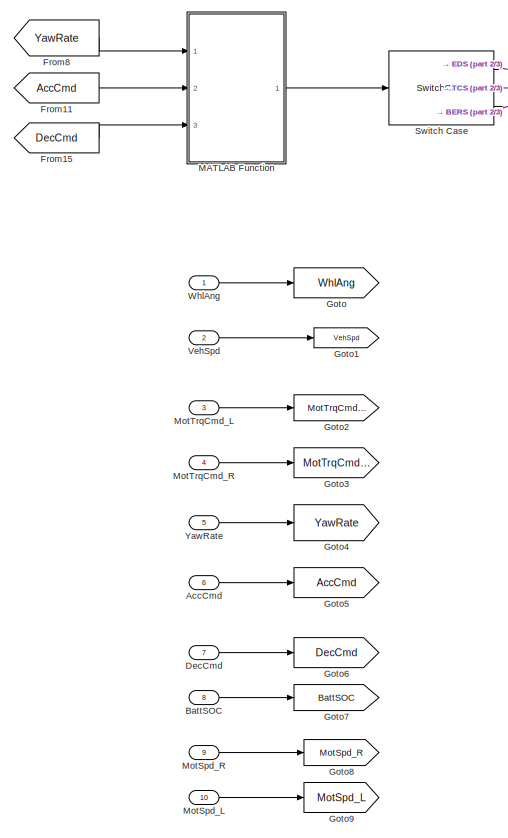
[diagram: root canvas - part 1/3, middle left region]
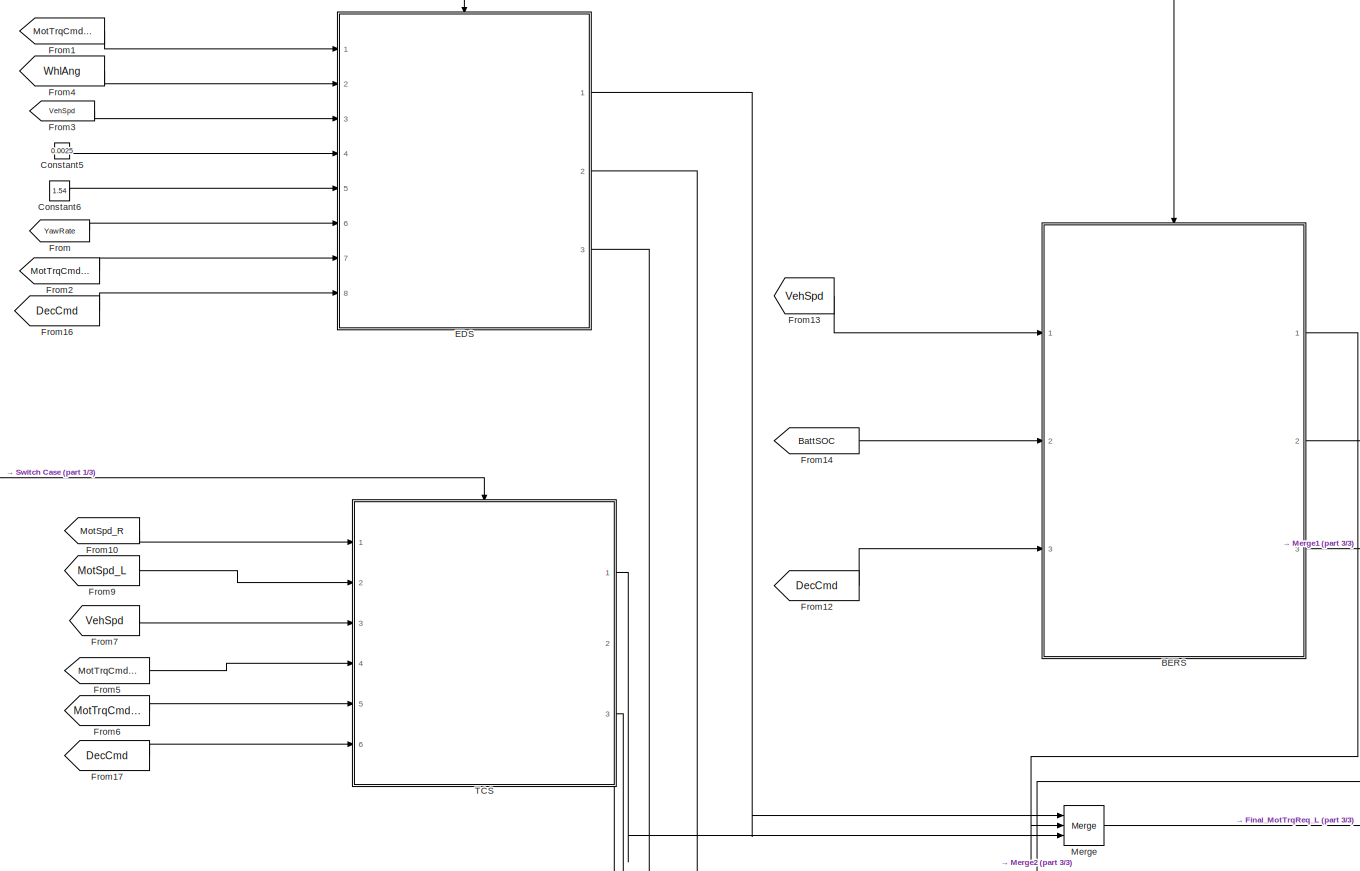
[diagram: root canvas - part 2/3, central region]
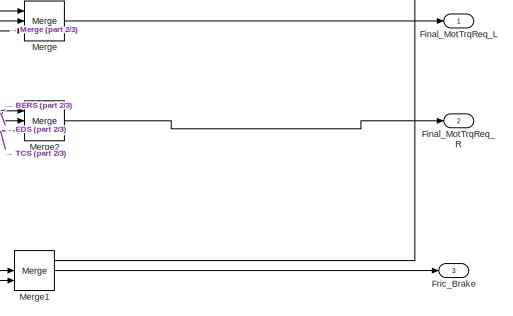
[diagram: root canvas - part 3/3, bottom right region]
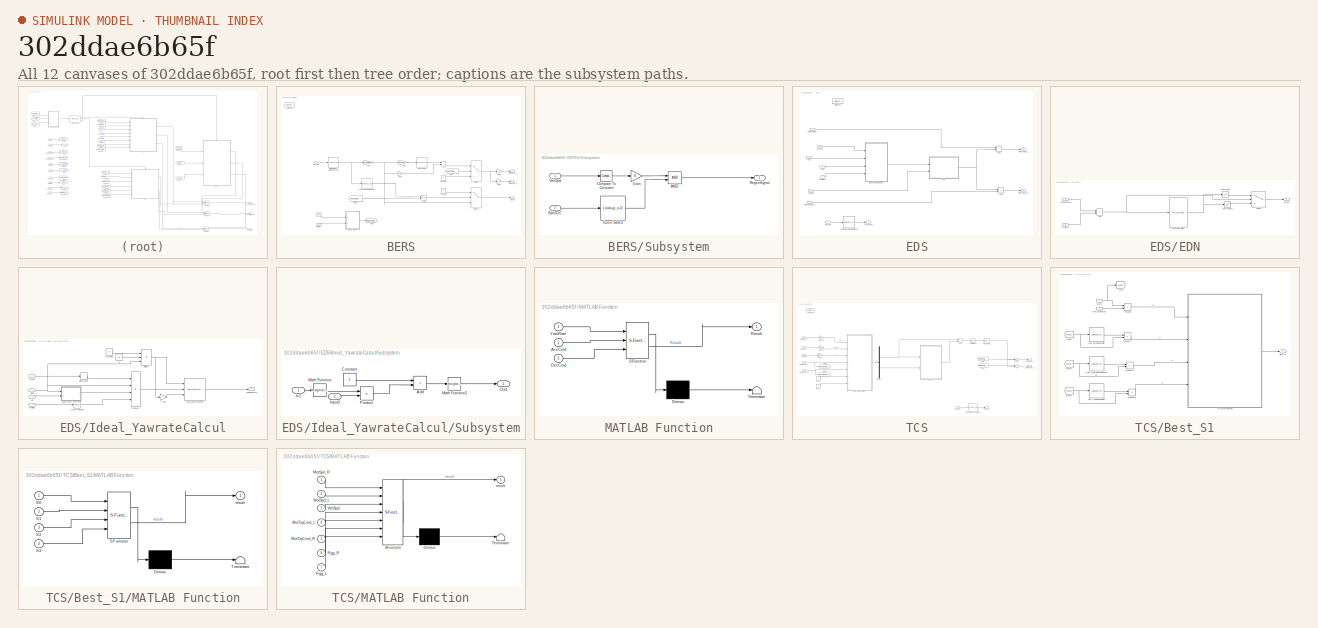
[diagram: thumbnail index - all 12 canvases of the model, root first then tree order]
MODEL slx_302ddae6b65f
KIND model
CONFIG AbsTol = auto
CONFIG EnableMultiTasking = off
CONFIG FixedStep = auto
CONFIG MaxStep = auto
CONFIG MinStep = auto
CONFIG RelTol = 1e-3
CONFIG SampleTimeConstraint = Unconstrained
CONFIG Solver = VariableStepAuto
CONFIG SolverName = VariableStepAuto
CONFIG StartTime = 0.0
CONFIG StopTime = 10.0
WORKSPACE source: mxarray member
WORKSPACE Batt: object (value not decoded)
BLOCK [Inport] AccCmd
  Port = 6
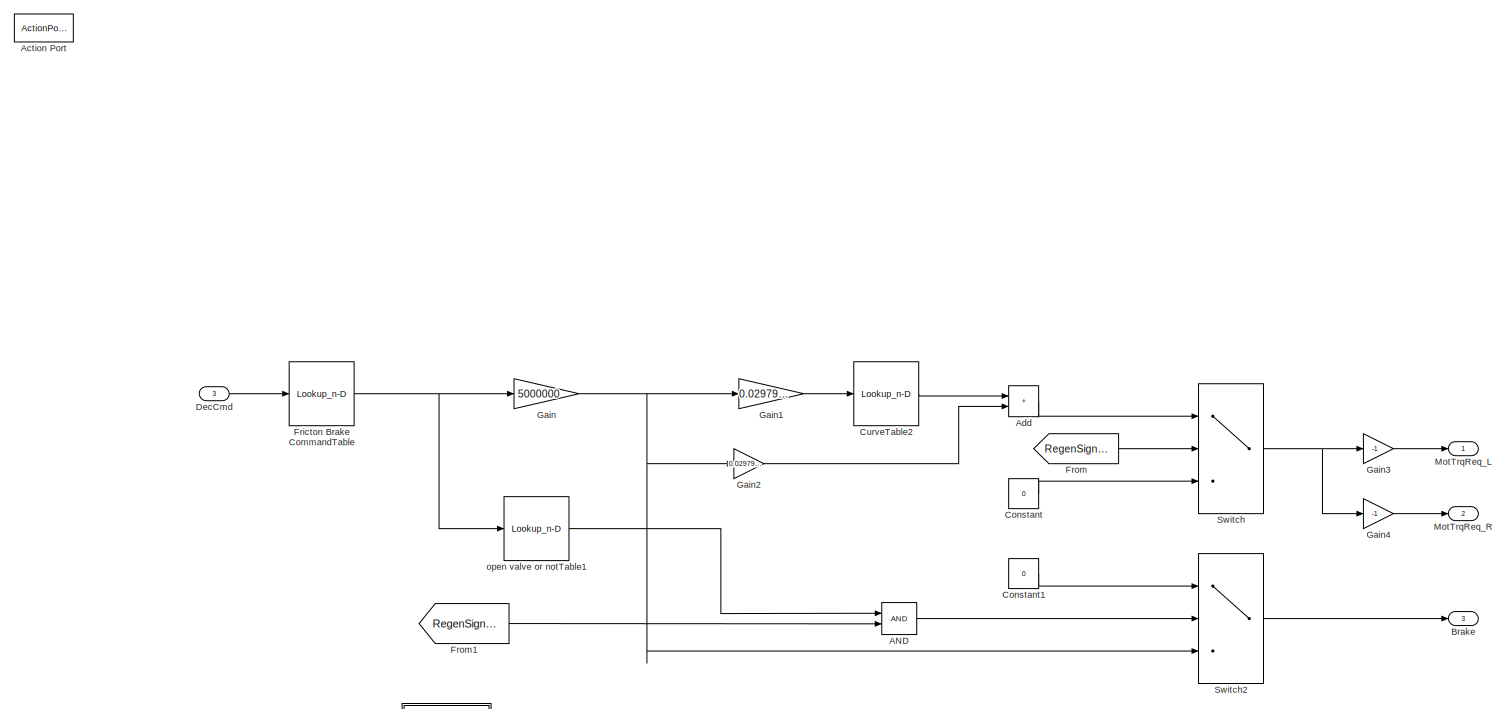
[diagram: BERS - part 1/2, most of the canvas]
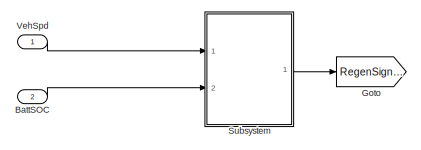
[diagram: BERS - part 2/2, bottom left region]
BLOCK [SubSystem] BERS
  Ports = [3, 3, 0, 0, 0, 0, 0, 1]
  RequestExecContextInheritance = off
  TreatAsAtomicUnit = on
BLOCK [Logic] BERS/AND
  AllPortsSameDT = off
  IconShape = distinctive
  OutDataTypeStr = boolean
  Ports = [2, 1]
BLOCK [ActionPort] BERS/Action Port
  ActionPortLabel = case [ 3 ]:
BLOCK [Sum] BERS/Add
  IconShape = rectangular
  Ports = [2, 1]
BLOCK [Inport] BERS/BattSOC
  Port = 2
BLOCK [Outport] BERS/Brake
  Port = 3
BLOCK [Constant] BERS/Constant
  Value = 0
BLOCK [Constant] BERS/Constant1
  Value = 0
BLOCK [Lookup_n-D] BERS/CurveTable2
  BreakpointsForDimension1 = Batt.Limit.SOC
  InternalRulePriority = Speed
  NumberOfTableDimensions = 1
  Ports = [1, 1]
  RndMeth = Simplest
  Table = Batt.Limit.Charge
BLOCK [Inport] BERS/DecCmd
  Port = 3
BLOCK [Lookup_n-D] BERS/Fricton Brake CommandTable
  BreakpointsForDimension1 = [.0 0.1 0.2 0.4 0.6 0.8 1.0]
  InternalRulePriority = Speed
  NumberOfTableDimensions = 1
  Ports = [1, 1]
  RndMeth = Simplest
  Table = [0 0 0.2 0.4 0.6 0.8 1.0]*60
BLOCK [From] BERS/From
  GotoTag = RegenSignal
BLOCK [From] BERS/From1
  GotoTag = RegenSignal
BLOCK [Gain] BERS/Gain
  Gain = 5000000
BLOCK [Gain] BERS/Gain1
  Gain = 0.0297999215999
BLOCK [Gain] BERS/Gain2
  Gain = 0.0297999215999
BLOCK [Gain] BERS/Gain3
  Gain = -1
BLOCK [Gain] BERS/Gain4
  Gain = -1
BLOCK [Goto] BERS/Goto
  GotoTag = RegenSignal
BLOCK [Outport] BERS/MotTrqReq_L
BLOCK [Outport] BERS/MotTrqReq_R
  Port = 2
BLOCK [SubSystem] BERS/Subsystem
  Ports = [2, 1]
  RequestExecContextInheritance = off
BLOCK [Logic] BERS/Subsystem/AND1
  AllPortsSameDT = off
  IconShape = distinctive
  OutDataTypeStr = boolean
  Ports = [2, 1]
BLOCK [Inport] BERS/Subsystem/BattSOC
  Port = 2
BLOCK [Reference] BERS/Subsystem/Compare To Constant  REF=simulink/Logic and Bit
Operations/Compare
To Constant
  Ports = [1, 1]
  SourceBlock = simulink/Logic and Bit\nOperations/Compare\nTo Constant
  SourceProductBaseCode = SL
  SourceType = Compare To Constant
BLOCK [Lookup_n-D] BERS/Subsystem/CurveTable3
  BreakpointsForDimension1 = Batt.Limit.SOC
  BreakpointsForDimension1DataTypeStr = Inherit: Inherit from 'Breakpoint data'
  ExtrapMethod = Clip
  InternalRulePriority = Speed
  NumberOfTableDimensions = 1
  Ports = [1, 1]
  RndMeth = Simplest
  Table = Batt.Limit.Charge
  UseLastTableValue = on
BLOCK [Gain] BERS/Subsystem/Gain
BLOCK [Outport] BERS/Subsystem/RegenSignal
BLOCK [Inport] BERS/Subsystem/VehSpd
BLOCK [Switch] BERS/Switch
  Criteria = u2 > Threshold
  InputSameDT = off
  SaturateOnIntegerOverflow = off
BLOCK [Switch] BERS/Switch2
  Criteria = u2 > Threshold
  InputSameDT = off
  SaturateOnIntegerOverflow = off
BLOCK [Inport] BERS/VehSpd
BLOCK [Lookup_n-D] BERS/open valve or notTable1
  BreakpointsForDimension1 = [.0 0.1 0.2 0.4 0.6 0.8 1.0]
  InternalRulePriority = Speed
  NumberOfTableDimensions = 1
  Ports = [1, 1]
  RndMeth = Simplest
  Table = [0 0 0.2 0.4 0.6 0.8 1.0]*60
BLOCK [Inport] BattSOC
  Port = 8
BLOCK [Constant] Constant5
  Value = 0.0025
BLOCK [Constant] Constant6
  Value = 1.54
BLOCK [Inport] DecCmd
  Port = 7
BLOCK [SubSystem] EDS
  Ports = [8, 3, 0, 0, 0, 0, 0, 1]
  RequestExecContextInheritance = off
  TreatAsAtomicUnit = on
BLOCK [ActionPort] EDS/Action Port
  ActionPortLabel = case [ 1 ]:
BLOCK [Sum] EDS/Add1
  IconShape = rectangular
  Ports = [2, 1]
BLOCK [Sum] EDS/Add2
  IconShape = rectangular
  Inputs = -+
  Ports = [2, 1]
BLOCK [Inport] EDS/DecCmd
  Port = 8
BLOCK [SubSystem] EDS/EDN
  Ports = [2, 1]
  RequestExecContextInheritance = off
BLOCK [Sum] EDS/EDN/Add
  IconShape = rectangular
  Inputs = +-
  Ports = [2, 1]
BLOCK [Inport] EDS/EDN/IdealYawrate
BLOCK [Reference] EDS/EDN/PID Controller  REF=simulink/Continuous/PID Controller
  Ports = [1, 1]
  SourceBlock = simulink/Continuous/PID Controller
  SourceProductBaseCode = SL
  SourceType = PID 1dof
BLOCK [Outport] EDS/EDN/PIDOut
BLOCK [Saturate] EDS/EDN/Saturation
  LowerLimit = 0
  UpperLimit = inf
BLOCK [Saturate] EDS/EDN/Saturation1
  LowerLimit = -inf
  UpperLimit = 0
BLOCK [Switch] EDS/EDN/Switch
  Criteria = u2 > Threshold
  InputSameDT = off
  SaturateOnIntegerOverflow = off
BLOCK [Inport] EDS/EDN/YawRate
  Port = 2
BLOCK [Outport] EDS/FricBrake
  Port = 3
BLOCK [Lookup_n-D] EDS/Fricton Brake Command
  BreakpointsForDimension1 = [.0 0.1 0.2 0.4 0.6 0.8 1.0]
  ExtrapMethod = Clip
  InternalRulePriority = Speed
  NumberOfTableDimensions = 1
  Ports = [1, 1]
  RndMeth = Simplest
  Table = [0 0 0.2 0.4 0.6 0.8 1.0]*60
BLOCK [SubSystem] EDS/Ideal_YawrateCalcul
  Ports = [4, 1]
  RequestExecContextInheritance = off
BLOCK [DeadZone] EDS/Ideal_YawrateCalcul/Dead Zone
  LowerValue = -0.025
  UpperValue = 0.025
BLOCK [Product] EDS/Ideal_YawrateCalcul/Divide
  Inputs = **/
  Ports = [3, 1]
BLOCK [Gain] EDS/Ideal_YawrateCalcul/Gain
  Gain = -1
BLOCK [Outport] EDS/Ideal_YawrateCalcul/IdealYawrate
BLOCK [Inport] EDS/Ideal_YawrateCalcul/Kd
  Port = 3
BLOCK [Math] EDS/Ideal_YawrateCalcul/Math Function
  Operator = reciprocal
  Ports = [1, 1]
BLOCK [Constant] EDS/Ideal_YawrateCalcul/Mu_Peak
  Value = 1.4
BLOCK [Product] EDS/Ideal_YawrateCalcul/Product1
  Inputs = 4
  Ports = [4, 1]
BLOCK [Reference] EDS/Ideal_YawrateCalcul/Saturation Dynamic  REF=simulink/Discontinuities/Saturation
Dynamic
  Ports = [3, 1]
  SourceBlock = simulink/Discontinuities/Saturation\nDynamic
  SourceProductBaseCode = SL
  SourceType = Saturation Dynamic
BLOCK [Inport] EDS/Ideal_YawrateCalcul/Spd
  Port = 2
BLOCK [SubSystem] EDS/Ideal_YawrateCalcul/Subsystem
  Ports = [2, 1]
  RequestExecContextInheritance = off
BLOCK [Sum] EDS/Ideal_YawrateCalcul/Subsystem/Add
  IconShape = rectangular
  Ports = [2, 1]
BLOCK [Constant] EDS/Ideal_YawrateCalcul/Subsystem/Constant
BLOCK [Inport] EDS/Ideal_YawrateCalcul/Subsystem/In1
BLOCK [Inport] EDS/Ideal_YawrateCalcul/Subsystem/Input3
  Port = 2
BLOCK [Math] EDS/Ideal_YawrateCalcul/Subsystem/Math Function
  Operator = magnitude^2
  Ports = [1, 1]
BLOCK [Math] EDS/Ideal_YawrateCalcul/Subsystem/Math Function2
  Operator = reciprocal
  Ports = [1, 1]
BLOCK [Outport] EDS/Ideal_YawrateCalcul/Subsystem/Out1
BLOCK [Product] EDS/Ideal_YawrateCalcul/Subsystem/Product
  Ports = [2, 1]
BLOCK [Inport] EDS/Ideal_YawrateCalcul/WhlAng
BLOCK [Inport] EDS/Ideal_YawrateCalcul/WhlBas
  Port = 4
BLOCK [Constant] EDS/Ideal_YawrateCalcul/g
  Value = 9.8
BLOCK [Inport] EDS/Kd
  Port = 4
BLOCK [Inport] EDS/MotTrqCmd_L
BLOCK [Inport] EDS/MotTrqCmd_R
  Port = 7
BLOCK [Outport] EDS/MotTrqReq_L
BLOCK [Outport] EDS/MotTrqReq_R
  Port = 2
BLOCK [Inport] EDS/Spd
  Port = 3
BLOCK [Inport] EDS/WhlAng
  Port = 2
BLOCK [Inport] EDS/WhlBas
  Port = 5
BLOCK [Inport] EDS/YawRate
  Port = 6
BLOCK [Outport] Final_MotTrqReq_L
BLOCK [Outport] Final_MotTrqReq_R
  Port = 2
BLOCK [Outport] Fric_Brake
  Port = 3
BLOCK [From] From
  GotoTag = YawRate
BLOCK [From] From1
  GotoTag = MotTrqCmd_L
BLOCK [From] From10
  GotoTag = MotSpd_R
BLOCK [From] From11
  GotoTag = AccCmd
BLOCK [From] From12
  GotoTag = DecCmd
BLOCK [From] From13
  GotoTag = VehSpd
BLOCK [From] From14
  GotoTag = BattSOC
BLOCK [From] From15
  GotoTag = DecCmd
BLOCK [From] From16
  GotoTag = DecCmd
BLOCK [From] From17
  GotoTag = DecCmd
BLOCK [From] From2
  GotoTag = MotTrqCmd_R
BLOCK [From] From3
  GotoTag = VehSpd
BLOCK [From] From4
  GotoTag = WhlAng
BLOCK [From] From5
  GotoTag = MotTrqCmd_L
BLOCK [From] From6
  GotoTag = MotTrqCmd_R
BLOCK [From] From7
  GotoTag = VehSpd
BLOCK [From] From8
  GotoTag = YawRate
BLOCK [From] From9
  GotoTag = MotSpd_L
BLOCK [Goto] Goto
  GotoTag = WhlAng
BLOCK [Goto] Goto1
  GotoTag = VehSpd
BLOCK [Goto] Goto2
  GotoTag = MotTrqCmd_L
BLOCK [Goto] Goto3
  GotoTag = MotTrqCmd_R
BLOCK [Goto] Goto4
  GotoTag = YawRate
BLOCK [Goto] Goto5
  GotoTag = AccCmd
BLOCK [Goto] Goto6
  GotoTag = DecCmd
BLOCK [Goto] Goto7
  GotoTag = BattSOC
BLOCK [Goto] Goto8
  GotoTag = MotSpd_R
BLOCK [Goto] Goto9
  GotoTag = MotSpd_L
BLOCK [SubSystem] MATLAB Function
  ErrorFcn = Stateflow.Translate.translate
  PermitHierarchicalResolution = ExplicitOnly
  Ports = [3, 1]
  RequestExecContextInheritance = off
  SFBlockType = MATLAB Function
  TreatAsAtomicUnit = on
BLOCK [Demux] MATLAB Function/ Demux 
  Outputs = 1
  Ports = [1, 1]
BLOCK [S-Function] MATLAB Function/ SFunction 
  EnableBusSupport = on
  FunctionName = sf_sfun
  PortCounts = [3 2]
  Ports = [3, 2]
  SFcnIsStateOwnerBlock = off
  SFunctionDeploymentMode = off
  Tag = Stateflow S-Function 1
BLOCK [Terminator] MATLAB Function/ Terminator 
BLOCK [Inport] MATLAB Function/AccCmd
  Port = 2
BLOCK [Inport] MATLAB Function/DecCmd
  Port = 3
BLOCK [Outport] MATLAB Function/Result
BLOCK [Inport] MATLAB Function/YawRate
BLOCK [Merge] Merge
  Inputs = 3
  Ports = [3, 1]
BLOCK [Merge] Merge1
  Inputs = 3
  Ports = [3, 1]
BLOCK [Merge] Merge2
  Inputs = 3
  Ports = [3, 1]
BLOCK [Inport] MotSpd_L
  Port = 10
BLOCK [Inport] MotSpd_R
  Port = 9
BLOCK [Inport] MotTrqCmd_L
  Port = 3
BLOCK [Inport] MotTrqCmd_R
  Port = 4
BLOCK [SwitchCase] Switch Case
  CaseConditions = {1,2,3}
  Ports = [1, 3]
  ShowDefaultCase = off
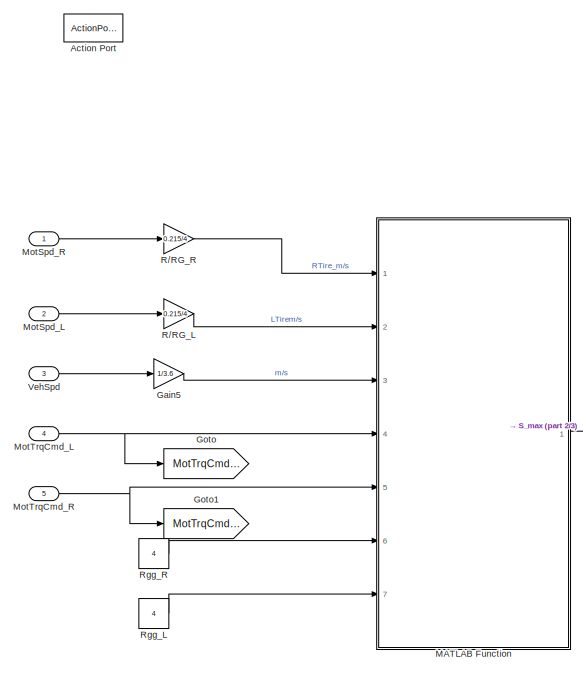
[diagram: TCS - part 1/3, left side, full height]
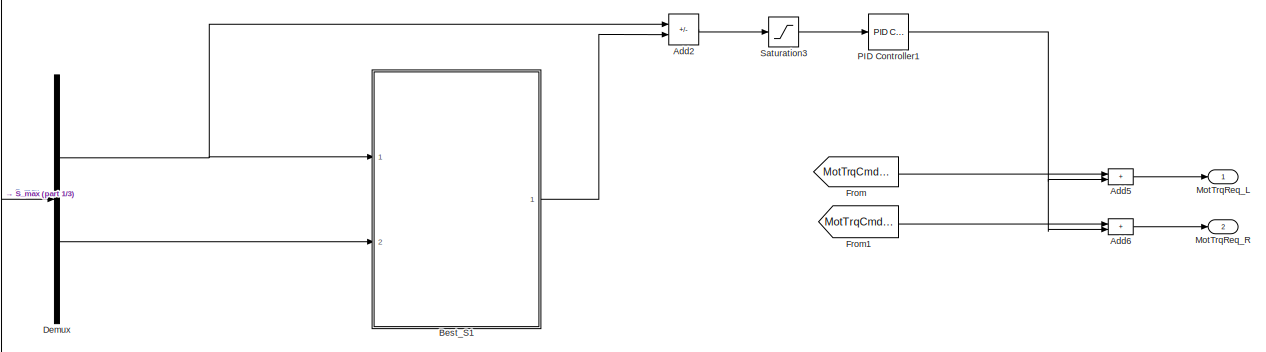
[diagram: TCS - part 2/3, central region]
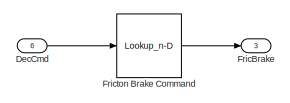
[diagram: TCS - part 3/3, bottom right region]
BLOCK [SubSystem] TCS
  Ports = [6, 3, 0, 0, 0, 0, 0, 1]
  RequestExecContextInheritance = off
  TreatAsAtomicUnit = on
BLOCK [ActionPort] TCS/Action Port
  ActionPortLabel = case [ 2 ]:
BLOCK [Sum] TCS/Add2
  IconShape = rectangular
  Inputs = -+
  Ports = [2, 1]
BLOCK [Sum] TCS/Add5
  IconShape = rectangular
  Ports = [2, 1]
BLOCK [Sum] TCS/Add6
  IconShape = rectangular
  Ports = [2, 1]
BLOCK [SubSystem] TCS/Best_S1
  Ports = [2, 1]
  RequestExecContextInheritance = off
BLOCK [Outport] TCS/Best_S1/Best_S
BLOCK [From] TCS/Best_S1/From
  GotoTag = MaxS
BLOCK [From] TCS/Best_S1/From1
  GotoTag = MaxS
BLOCK [From] TCS/Best_S1/From2
  GotoTag = MaxS
BLOCK [Goto] TCS/Best_S1/Goto
  GotoTag = MaxS
BLOCK [Lookup_n-D] TCS/Best_S1/LNG_DryFlcoeTable
  BreakpointsForDimension1 = [0	0.02	0.04	0.06	0.08	0.1	0.12	0.14	0.16	0.18	0.2	0.22	0.24	0.26	0.28	0.3	0.32	0.34	0.36	0.38	0.4	0.42	0.44	0.46	0.48	0.5	0.52	0.54	0.56	0.58	0.6	0.62	0.64	0.66	0.68	0.7	0.72	0.74	0.76	0.78	0.8	0.82	0.84	0.86	0.88	0.9	0.92	0.94	0.96	0.98	1]
  InternalRulePriority = Speed
  NumberOfTableDimensions = 1
  Ports = [1, 1]
  RndMeth = Simplest
  Table = [0	0.463	0.738	0.9	0.994	1.05	1.07	1.09	1.09	1.09	1.08	1.07	1.06	1.05	1.04	1.03	1.02	1.01	1	0.992	0.981	0.97	0.959	0.949	0.938	0.927	0.916	0.905	0.895	0.884	0.873	0.862	0.851	0.841	0.83	0.819	0.808	0.797	0.787	0.776	0.765	0.754	0.743	0.733	0.722	0.711	0.7	0.689	0.679	0.668	0.657]
BLOCK [Lookup_n-D] TCS/Best_S1/LNG_IceFlcoeTable2
  BreakpointsForDimension1 = [ 0, 0.02, 0.04, 0.06, 0.08, 0.1, 0.12, 0.14, 0.16, 0.18, 0.2, 0.22, 0.24, 0.26, 0.28, 0.3, 0.32, 0.34, 0.36, 0.38, 0.4, 0.42, 0.44, 0.46, 0.48, 0.5, 0.52, 0.54, 0.56, 0.58, 0.6, 0.62, 0.64, 0.66, 0.68, 0.7, 0.72, 0.74, 0.76, 0.78, 0.8, 0.82, 0.84, 0.86, 0.88, 0.9, 0.92, 0.94, 0.96, 0.98, 1.0]
  InternalRulePriority = Speed
  NumberOfTableDimensions = 1
  Ports = [1, 1]
  RndMeth = Simplest
  Table = [ 0, 0.05, 0.05, 0.05, 0.05, 0.05, 0.05, 0.05, 0.05, 0.05, 0.05, 0.05, 0.05, 0.05, 0.05, 0.05, 0.05, 0.05, 0.05, 0.05, 0.05, 0.05, 0.05, 0.05, 0.05, 0.05, 0.05, 0.05, 0.049, 0.049, 0.049, 0.049, 0.049, 0.049, 0.049, 0.049, 0.049, 0.049, 0.049, 0.049, 0.049, 0.049, 0.049, 0.049, 0.049, 0.049, 0.049, 0.049, 0.049, 0.049, 0.049]
BLOCK [Lookup_n-D] TCS/Best_S1/LNG_WetFlcoeTableTable1
  BreakpointsForDimension1 = [ 0, 0.02, 0.04, 0.06, 0.08, 0.1, 0.12, 0.14, 0.16, 0.18, 0.2, 0.22, 0.24, 0.26, 0.28, 0.3, 0.32, 0.34, 0.36, 0.38, 0.4, 0.42, 0.44, 0.46, 0.48, 0.5, 0.52, 0.54, 0.56, 0.58, 0.6, 0.62, 0.64, 0.66, 0.68, 0.7, 0.72, 0.74, 0.76, 0.78, 0.8, 0.82, 0.84, 0.86, 0.88, 0.9, 0.92, 0.94, 0.96, 0.98, 1.0]
  InternalRulePriority = Speed
  NumberOfTableDimensions = 1
  Ports = [1, 1]
  RndMeth = Simplest
  Table = [ 0, 0.41, 0.62, 0.72, 0.77, 0.79, 0.8, 0.8, 0.8, 0.79, 0.79, 0.78, 0.77, 0.77, 0.76, 0.75, 0.74, 0.74, 0.73, 0.72, 0.72, 0.71, 0.7, 0.7, 0.69, 0.68, 0.68, 0.67, 0.66, 0.65, 0.65, 0.64, 0.63, 0.63, 0.62, 0.61, 0.6, 0.6, 0.59, 0.58, 0.58, 0.57, 0.56, 0.56, 0.55, 0.54, 0.54, 0.53, 0.52, 0.51, 0.51]
BLOCK [SubSystem] TCS/Best_S1/MATLAB Function
  ErrorFcn = Stateflow.Translate.translate
  PermitHierarchicalResolution = ExplicitOnly
  Ports = [4, 1]
  RequestExecContextInheritance = off
  SFBlockType = MATLAB Function
  TreatAsAtomicUnit = on
BLOCK [Demux] TCS/Best_S1/MATLAB Function/ Demux 
  Outputs = 1
  Ports = [1, 1]
BLOCK [S-Function] TCS/Best_S1/MATLAB Function/ SFunction 
  EnableBusSupport = on
  FunctionName = sf_sfun
  PortCounts = [4 2]
  Ports = [4, 2]
  SFcnIsStateOwnerBlock = off
  SFunctionDeploymentMode = off
  Tag = Stateflow S-Function 3
BLOCK [Terminator] TCS/Best_S1/MATLAB Function/ Terminator 
BLOCK [Inport] TCS/Best_S1/MATLAB Function/S0
BLOCK [Inport] TCS/Best_S1/MATLAB Function/S1
  Port = 2
BLOCK [Inport] TCS/Best_S1/MATLAB Function/S2
  Port = 3
BLOCK [Inport] TCS/Best_S1/MATLAB Function/S3
  Port = 4
BLOCK [Outport] TCS/Best_S1/MATLAB Function/result
BLOCK [Inport] TCS/Best_S1/MaxS
BLOCK [Inport] TCS/Best_S1/Max_Whl_Flcoe
  Port = 2
BLOCK [Product] TCS/Best_S1/Product
  Ports = [2, 1]
BLOCK [Product] TCS/Best_S1/Product1
  Ports = [2, 1]
BLOCK [Product] TCS/Best_S1/Product2
  Ports = [2, 1]
BLOCK [Product] TCS/Best_S1/Product3
  Ports = [2, 1]
BLOCK [Inport] TCS/DecCmd
  Port = 6
BLOCK [Demux] TCS/Demux
  Outputs = 2
  Ports = [1, 2]
BLOCK [Outport] TCS/FricBrake
  Port = 3
BLOCK [Lookup_n-D] TCS/Fricton Brake Command
  BreakpointsForDimension1 = [.0 0.1 0.2 0.4 0.6 0.8 1.0]
  ExtrapMethod = Clip
  InternalRulePriority = Speed
  NumberOfTableDimensions = 1
  Ports = [1, 1]
  RndMeth = Simplest
  Table = [0 0 0.2 0.4 0.6 0.8 1.0]*60
BLOCK [From] TCS/From
  GotoTag = MotTrqCmd_L
BLOCK [From] TCS/From1
  GotoTag = MotTrqCmd_R
BLOCK [Gain] TCS/Gain5
  Gain = 1/3.6
BLOCK [Goto] TCS/Goto
  GotoTag = MotTrqCmd_L
BLOCK [Goto] TCS/Goto1
  GotoTag = MotTrqCmd_R
BLOCK [SubSystem] TCS/MATLAB Function
  ErrorFcn = Stateflow.Translate.translate
  PermitHierarchicalResolution = ExplicitOnly
  Ports = [7, 1]
  RequestExecContextInheritance = off
  SFBlockType = MATLAB Function
  TreatAsAtomicUnit = on
BLOCK [Demux] TCS/MATLAB Function/ Demux 
  Outputs = 1
  Ports = [1, 1]
BLOCK [S-Function] TCS/MATLAB Function/ SFunction 
  EnableBusSupport = on
  FunctionName = sf_sfun
  PortCounts = [7 2]
  Ports = [7, 2]
  SFcnIsStateOwnerBlock = off
  SFunctionDeploymentMode = off
  Tag = Stateflow S-Function 2
BLOCK [Terminator] TCS/MATLAB Function/ Terminator 
BLOCK [Inport] TCS/MATLAB Function/MotSpd_L
  Port = 2
BLOCK [Inport] TCS/MATLAB Function/MotSpd_R
BLOCK [Inport] TCS/MATLAB Function/MotTrqCmd_L
  Port = 4
BLOCK [Inport] TCS/MATLAB Function/MotTrqCmd_R
  Port = 5
BLOCK [Inport] TCS/MATLAB Function/Rgg_L
  Port = 7
BLOCK [Inport] TCS/MATLAB Function/Rgg_R
  Port = 6
BLOCK [Inport] TCS/MATLAB Function/VehSpd
  Port = 3
BLOCK [Outport] TCS/MATLAB Function/result
BLOCK [Inport] TCS/MotSpd_L
  Port = 2
BLOCK [Inport] TCS/MotSpd_R
BLOCK [Inport] TCS/MotTrqCmd_L
  Port = 4
BLOCK [Inport] TCS/MotTrqCmd_R
  Port = 5
BLOCK [Outport] TCS/MotTrqReq_L
BLOCK [Outport] TCS/MotTrqReq_R
  Port = 2
BLOCK [Reference] TCS/PID Controller1  REF=simulink/Continuous/PID Controller
  Ports = [1, 1]
  SourceBlock = simulink/Continuous/PID Controller
  SourceProductBaseCode = SL
  SourceType = PID 1dof
BLOCK [Gain] TCS/R//RG_L
  Gain = 0.215/4
BLOCK [Gain] TCS/R//RG_R
  Gain = 0.215/4
BLOCK [Constant] TCS/Rgg_L
  Value = 4
BLOCK [Constant] TCS/Rgg_R
  Value = 4
BLOCK [Saturate] TCS/Saturation3
  LowerLimit = -2
  UpperLimit = 2
BLOCK [Inport] TCS/VehSpd
  Port = 3
BLOCK [Inport] VehSpd
  Port = 2
BLOCK [Inport] WhlAng
BLOCK [Inport] YawRate
  Port = 5
LINE AccCmd:1 -> Goto5:1
LINE BERS/AND:1 -> BERS/Switch2:2
LINE BERS/Add:1 -> BERS/Switch:1
LINE BERS/BattSOC:1 -> BERS/Subsystem:2
LINE BERS/Constant1:1 -> BERS/Switch2:1
LINE BERS/Constant:1 -> BERS/Switch:3
LINE BERS/CurveTable2:1 -> BERS/Add:1
LINE BERS/DecCmd:1 -> BERS/Fricton Brake CommandTable:1
NET BERS/Fricton Brake CommandTable:1 -> BERS/Gain:1, BERS/open valve or notTable1:1
LINE BERS/From1:1 -> BERS/AND:2
LINE BERS/From:1 -> BERS/Switch:2
LINE BERS/Gain1:1 -> BERS/CurveTable2:1
LINE BERS/Gain2:1 -> BERS/Add:2
LINE BERS/Gain3:1 -> BERS/MotTrqReq_L:1
LINE BERS/Gain4:1 -> BERS/MotTrqReq_R:1
NET BERS/Gain:1 -> BERS/Gain1:1, BERS/Gain2:1, BERS/Switch2:3
LINE BERS/Subsystem/AND1:1 -> BERS/Subsystem/RegenSignal:1
LINE BERS/Subsystem/BattSOC:1 -> BERS/Subsystem/CurveTable3:1
LINE BERS/Subsystem/Compare To Constant:1 -> BERS/Subsystem/Gain:1
LINE BERS/Subsystem/CurveTable3:1 -> BERS/Subsystem/AND1:2
LINE BERS/Subsystem/Gain:1 -> BERS/Subsystem/AND1:1
LINE BERS/Subsystem/VehSpd:1 -> BERS/Subsystem/Compare To Constant:1
LINE BERS/Subsystem:1 -> BERS/Goto:1
LINE BERS/Switch2:1 -> BERS/Brake:1
NET BERS/Switch:1 -> BERS/Gain3:1, BERS/Gain4:1
LINE BERS/VehSpd:1 -> BERS/Subsystem:1
LINE BERS/open valve or notTable1:1 -> BERS/AND:1
LINE BERS:1 -> Merge:2
LINE BERS:2 -> Merge2:1
LINE BERS:3 -> Merge1:1
LINE BattSOC:1 -> Goto7:1
LINE Constant5:1 -> EDS:4
LINE Constant6:1 -> EDS:5
LINE DecCmd:1 -> Goto6:1
LINE EDS/Add1:1 -> EDS/MotTrqReq_L:1
LINE EDS/Add2:1 -> EDS/MotTrqReq_R:1
LINE EDS/DecCmd:1 -> EDS/Fricton Brake Command:1
NET EDS/EDN/Add:1 -> EDS/EDN/PID Controller:1, EDS/EDN/Switch:2
LINE EDS/EDN/IdealYawrate:1 -> EDS/EDN/Add:1
NET EDS/EDN/PID Controller:1 -> EDS/EDN/Saturation1:1, EDS/EDN/Saturation:1
LINE EDS/EDN/Saturation1:1 -> EDS/EDN/Switch:3
LINE EDS/EDN/Saturation:1 -> EDS/EDN/Switch:1
LINE EDS/EDN/Switch:1 -> EDS/EDN/PIDOut:1
LINE EDS/EDN/YawRate:1 -> EDS/EDN/Add:2
NET EDS/EDN:1 -> EDS/Add1:2, EDS/Add2:1
LINE EDS/Fricton Brake Command:1 -> EDS/FricBrake:1
LINE EDS/Ideal_YawrateCalcul/Dead Zone:1 -> EDS/Ideal_YawrateCalcul/Product1:1
NET EDS/Ideal_YawrateCalcul/Divide:1 -> EDS/Ideal_YawrateCalcul/Gain:1, EDS/Ideal_YawrateCalcul/Saturation Dynamic:1
LINE EDS/Ideal_YawrateCalcul/Gain:1 -> EDS/Ideal_YawrateCalcul/Saturation Dynamic:3
LINE EDS/Ideal_YawrateCalcul/Kd:1 -> EDS/Ideal_YawrateCalcul/Subsystem:2
LINE EDS/Ideal_YawrateCalcul/Math Function:1 -> EDS/Ideal_YawrateCalcul/Product1:4
LINE EDS/Ideal_YawrateCalcul/Mu_Peak:1 -> EDS/Ideal_YawrateCalcul/Divide:1
LINE EDS/Ideal_YawrateCalcul/Product1:1 -> EDS/Ideal_YawrateCalcul/Saturation Dynamic:2
LINE EDS/Ideal_YawrateCalcul/Saturation Dynamic:1 -> EDS/Ideal_YawrateCalcul/IdealYawrate:1
NET EDS/Ideal_YawrateCalcul/Spd:1 -> EDS/Ideal_YawrateCalcul/Divide:3, EDS/Ideal_YawrateCalcul/Product1:2, EDS/Ideal_YawrateCalcul/Subsystem:1
LINE EDS/Ideal_YawrateCalcul/Subsystem/Add:1 -> EDS/Ideal_YawrateCalcul/Subsystem/Math Function2:1
LINE EDS/Ideal_YawrateCalcul/Subsystem/Constant:1 -> EDS/Ideal_YawrateCalcul/Subsystem/Add:1
LINE EDS/Ideal_YawrateCalcul/Subsystem/In1:1 -> EDS/Ideal_YawrateCalcul/Subsystem/Math Function:1
LINE EDS/Ideal_YawrateCalcul/Subsystem/Input3:1 -> EDS/Ideal_YawrateCalcul/Subsystem/Product:2
LINE EDS/Ideal_YawrateCalcul/Subsystem/Math Function2:1 -> EDS/Ideal_YawrateCalcul/Subsystem/Out1:1
LINE EDS/Ideal_YawrateCalcul/Subsystem/Math Function:1 -> EDS/Ideal_YawrateCalcul/Subsystem/Product:1
LINE EDS/Ideal_YawrateCalcul/Subsystem/Product:1 -> EDS/Ideal_YawrateCalcul/Subsystem/Add:2
LINE EDS/Ideal_YawrateCalcul/Subsystem:1 -> EDS/Ideal_YawrateCalcul/Product1:3
LINE EDS/Ideal_YawrateCalcul/WhlAng:1 -> EDS/Ideal_YawrateCalcul/Dead Zone:1
LINE EDS/Ideal_YawrateCalcul/WhlBas:1 -> EDS/Ideal_YawrateCalcul/Math Function:1
LINE EDS/Ideal_YawrateCalcul/g:1 -> EDS/Ideal_YawrateCalcul/Divide:2
LINE EDS/Ideal_YawrateCalcul:1 -> EDS/EDN:1
LINE EDS/Kd:1 -> EDS/Ideal_YawrateCalcul:3
LINE EDS/MotTrqCmd_L:1 -> EDS/Add1:1
LINE EDS/MotTrqCmd_R:1 -> EDS/Add2:2
LINE EDS/Spd:1 -> EDS/Ideal_YawrateCalcul:2
LINE EDS/WhlAng:1 -> EDS/Ideal_YawrateCalcul:1
LINE EDS/WhlBas:1 -> EDS/Ideal_YawrateCalcul:4
LINE EDS/YawRate:1 -> EDS/EDN:2
LINE EDS:1 -> Merge:1
LINE EDS:2 -> Merge2:2
LINE EDS:3 -> Merge1:2
LINE From10:1 -> TCS:1
LINE From11:1 -> MATLAB Function:2
LINE From12:1 -> BERS:3
LINE From13:1 -> BERS:1
LINE From14:1 -> BERS:2
LINE From15:1 -> MATLAB Function:3
LINE From16:1 -> EDS:8
LINE From17:1 -> TCS:6
LINE From1:1 -> EDS:1
LINE From2:1 -> EDS:7
LINE From3:1 -> EDS:3
LINE From4:1 -> EDS:2
LINE From5:1 -> TCS:4
LINE From6:1 -> TCS:5
LINE From7:1 -> TCS:3
LINE From8:1 -> MATLAB Function:1
LINE From9:1 -> TCS:2
LINE From:1 -> EDS:6
LINE MATLAB Function:1 -> Switch Case:1
LINE Merge1:1 -> Fric_Brake:1
LINE Merge2:1 -> Final_MotTrqReq_R:1
LINE Merge:1 -> Final_MotTrqReq_L:1
LINE MotSpd_L:1 -> Goto9:1
LINE MotSpd_R:1 -> Goto8:1
LINE MotTrqCmd_L:1 -> Goto2:1
LINE MotTrqCmd_R:1 -> Goto3:1
LINE Switch Case:1 -> EDS:ifaction
LINE Switch Case:2 -> TCS:ifaction
LINE Switch Case:3 -> BERS:ifaction
LINE TCS/Add2:1 -> TCS/Saturation3:1
LINE TCS/Add5:1 -> TCS/MotTrqReq_L:1
LINE TCS/Add6:1 -> TCS/MotTrqReq_R:1
NET TCS/Best_S1/From1:1 -> TCS/Best_S1/LNG_WetFlcoeTableTable1:1, TCS/Best_S1/Product2:2
NET TCS/Best_S1/From2:1 -> TCS/Best_S1/LNG_IceFlcoeTable2:1, TCS/Best_S1/Product3:2
NET TCS/Best_S1/From:1 -> TCS/Best_S1/LNG_DryFlcoeTable:1, TCS/Best_S1/Product1:2
LINE TCS/Best_S1/LNG_DryFlcoeTable:1 -> TCS/Best_S1/Product1:1
LINE TCS/Best_S1/LNG_IceFlcoeTable2:1 -> TCS/Best_S1/Product3:1
LINE TCS/Best_S1/LNG_WetFlcoeTableTable1:1 -> TCS/Best_S1/Product2:1
LINE TCS/Best_S1/MATLAB Function:1 -> TCS/Best_S1/Best_S:1
NET TCS/Best_S1/MaxS:1 -> TCS/Best_S1/Goto:1, TCS/Best_S1/Product:1
LINE TCS/Best_S1/Max_Whl_Flcoe:1 -> TCS/Best_S1/Product:2
LINE TCS/Best_S1/Product1:1 -> TCS/Best_S1/MATLAB Function:2
LINE TCS/Best_S1/Product2:1 -> TCS/Best_S1/MATLAB Function:3
LINE TCS/Best_S1/Product3:1 -> TCS/Best_S1/MATLAB Function:4
LINE TCS/Best_S1/Product:1 -> TCS/Best_S1/MATLAB Function:1
LINE TCS/Best_S1:1 -> TCS/Add2:2
LINE TCS/DecCmd:1 -> TCS/Fricton Brake Command:1
NET TCS/Demux:1 -> TCS/Add2:1, TCS/Best_S1:1
LINE TCS/Demux:2 -> TCS/Best_S1:2
LINE TCS/Fricton Brake Command:1 -> TCS/FricBrake:1
LINE TCS/From1:1 -> TCS/Add6:1
LINE TCS/From:1 -> TCS/Add5:1
LINE TCS/Gain5:1 -> TCS/MATLAB Function:3
LINE TCS/MATLAB Function:1 -> TCS/Demux:1
LINE TCS/MotSpd_L:1 -> TCS/R//RG_L:1
LINE TCS/MotSpd_R:1 -> TCS/R//RG_R:1
NET TCS/MotTrqCmd_L:1 -> TCS/Goto:1, TCS/MATLAB Function:4
NET TCS/MotTrqCmd_R:1 -> TCS/Goto1:1, TCS/MATLAB Function:5
NET TCS/PID Controller1:1 -> TCS/Add5:2, TCS/Add6:2
LINE TCS/R//RG_L:1 -> TCS/MATLAB Function:2
LINE TCS/R//RG_R:1 -> TCS/MATLAB Function:1
LINE TCS/Rgg_L:1 -> TCS/MATLAB Function:7
LINE TCS/Rgg_R:1 -> TCS/MATLAB Function:6
LINE TCS/Saturation3:1 -> TCS/PID Controller1:1
LINE TCS/VehSpd:1 -> TCS/Gain5:1
LINE TCS:1 -> Merge:3
LINE TCS:2 -> Merge2:3
LINE TCS:3 -> Merge1:3
LINE VehSpd:1 -> Goto1:1
LINE WhlAng:1 -> Goto:1
LINE YawRate:1 -> Goto4:1
note: NET lines group one-source signal fan-out (src -> all destinations, sorted); 1:1 wires keep LINE
CHART MATLAB Function states=1 transitions=1
  STATE_LABEL 'eML_blk_kernel()'
  STATE_LABEL 'SCRIPT:\nfunction Result = fcn(YawRate,AccCmd,DecCmd)\nif abs(YawRate)<0.025&&AccCmd>0\n    out = 2;\nelseif DecCmd>0\n    out = 3;\nelse\n    out = 1;\nend\n\nResult = out;\nend\n\n'
CHART TCS/MATLAB Function states=1 transitions=1
  STATE_LABEL 'eML_blk_kernel()'
  STATE_LABEL 'SCRIPT:\nfunction result = fcn(MotSpd_R,MotSpd_L,VehSpd,MotTrqCmd_L,MotTrqCmd_R,Rgg_R,Rgg_L)\nS_r = (MotSpd_R - VehSpd)/MotSpd_R;\nS_l = (MotSpd_L - VehSpd)/MotSpd_L;\n if(S_r>S_l)\n     S_max = S_r;\n     u_max = (MotTrqCmd_R*Rgg_R*0.95)/0.215/(330*0.55*0.5);\n else\n     S_max = S_l;\n     u_max = (MotTrqCmd_L*Rgg_L*0.95)/0.215/(330*0.55*0.5);\n end\nresult = [S_max;u_max];\nend'
CHART TCS/Best_S1/MATLAB Function states=1 transitions=1
  STATE_LABEL 'eML_blk_kernel()'
  STATE_LABEL 'SCRIPT:\nfunction result = fcn(S0,S1,S2,S3)\n    a = abs(S0-S1);a1=0.16;\n    b=abs(S0-S2);b1=0.131;\n    c = abs(S0-S3);c1=0.031;\n    if a>b\n        if b>c\n            best_S = c1;\n        else\n            best_S =b1;\n        end\n    else\n       if a>c\n           best_S = c1;\n       else\n           best_S = a1;\n       end\n    end\nresult = best_S;\nend\n'
CHART  states=0 transitions=0
CHART  states=0 transitions=0
CHART  states=0 transitions=0
